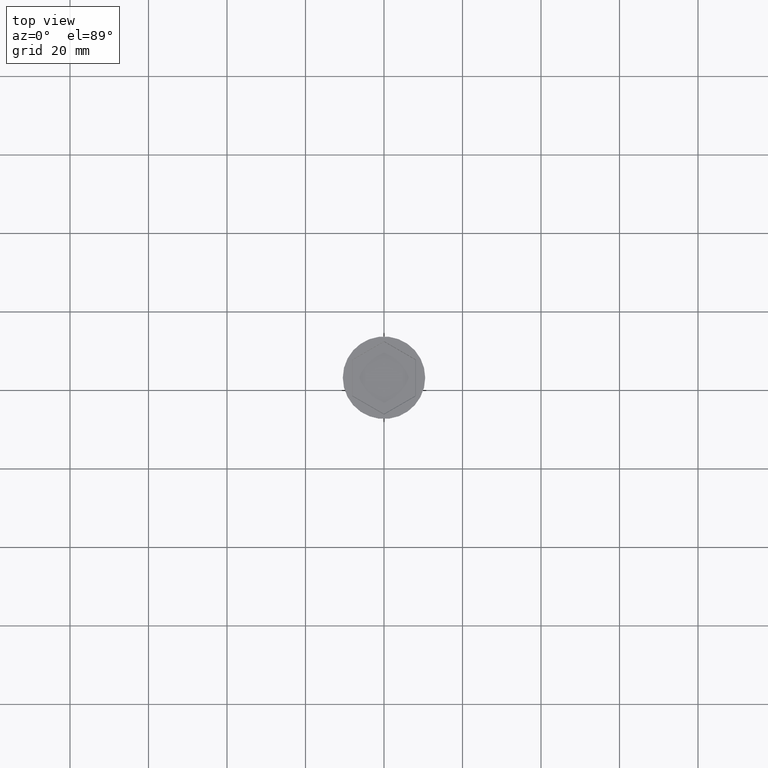
[diagram: clean part render]
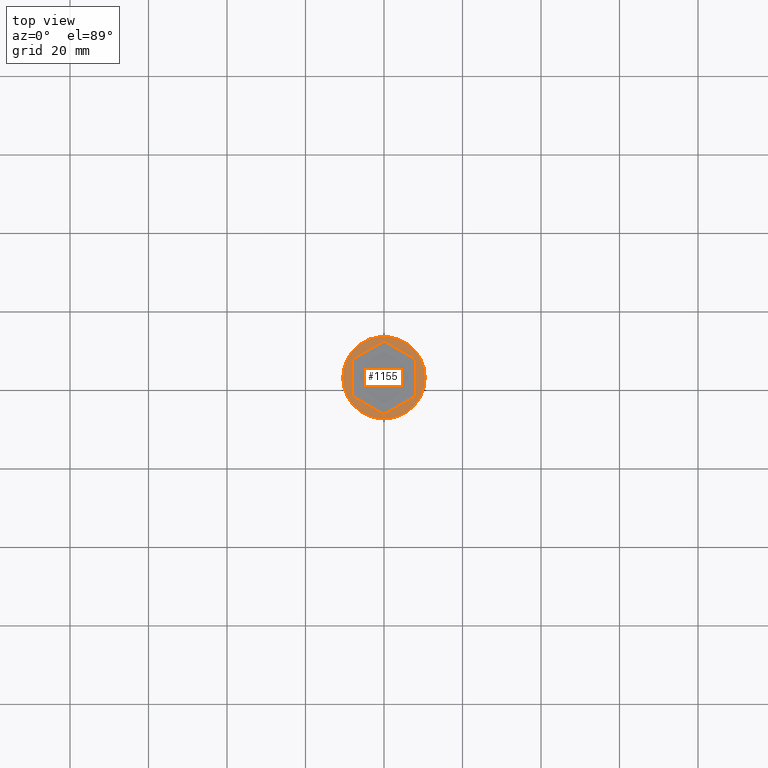
[diagram: same view with one face highlighted and labeled with its STEP entity id]
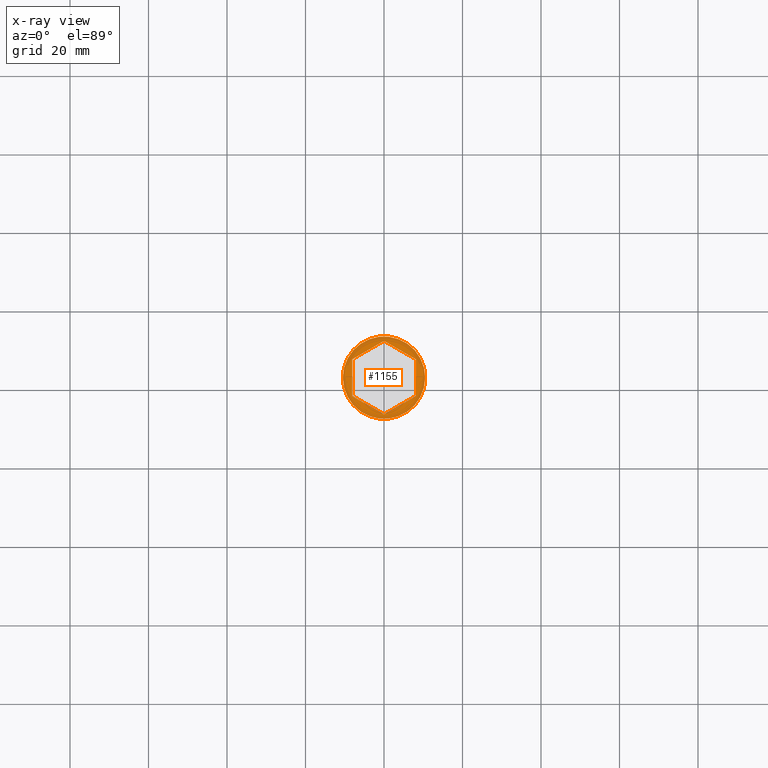
[diagram: x-ray of the same camera — body ghosted, the highlighted face saturated]
A machine part, top view. The second image highlights one B-rep face of the part: STEP entity #1155.
The next image is the same camera in x-ray: the body ghosted, the highlighted face saturated — about 0% of this face is hidden behind the body in this view.
In plain terms, the highlighted planar face has unit normal (0, -0, 1).
Its self-contained STEP definition (entity closure, byte-faithful):
#29 = LINE ( 'NONE', #188, #1209 ) ;
#36 = VECTOR ( 'NONE', #912, 1000.000000000000114 ) ;
#88 = LINE ( 'NONE', #215, #981 ) ;
#119 = VECTOR ( 'NONE', #121, 1000.000000000000000 ) ;
#121 = DIRECTION ( 'NONE',  ( 0.000000000000000000, 1.000000000000000000, 0.000000000000000000 ) ) ;
#143 = AXIS2_PLACEMENT_3D ( 'NONE', #943, #1558, #1197 ) ;
#144 = ORIENTED_EDGE ( 'NONE', *, *, #1101, .T. ) ;
#156 = CARTESIAN_POINT ( 'NONE',  ( -8.099999999999983658, 4.676537180435953012, 0.000000000000000000 ) ) ;
#188 = CARTESIAN_POINT ( 'NONE',  ( 0.04999999999999227979, -9.324206847412442656, 0.000000000000000000 ) ) ;
#208 = FACE_OUTER_BOUND ( 'NONE', #1172, .T. ) ;
#215 = CARTESIAN_POINT ( 'NONE',  ( 8.049999999999991829, 4.705404693895430590, 0.000000000000000000 ) ) ;
#232 = CARTESIAN_POINT ( 'NONE',  ( -8.099999999999983658, -4.676537180435961005, 0.000000000000000000 ) ) ;
#244 = DIRECTION ( 'NONE',  ( 0.8660254037844385966, -0.5000000000000001110, 0.000000000000000000 ) ) ;
#264 = EDGE_CURVE ( 'NONE', #401, #714, #985, .T. ) ;
#281 = LINE ( 'NONE', #993, #1187 ) ;
#285 = ORIENTED_EDGE ( 'NONE', *, *, #1294, .T. ) ;
#365 = LINE ( 'NONE', #1201, #1060 ) ;
#378 = CARTESIAN_POINT ( 'NONE',  ( 0.000000000000000000, 0.000000000000000000, 0.000000000000000000 ) ) ;
#401 = VERTEX_POINT ( 'NONE', #232 ) ;
#408 = AXIS2_PLACEMENT_3D ( 'NONE', #964, #1561, #1222 ) ;
#414 = CARTESIAN_POINT ( 'NONE',  ( 1.575481281892998384E-16, -9.353074360871918458, 0.000000000000000000 ) ) ;
#469 = ORIENTED_EDGE ( 'NONE', *, *, #1103, .T. ) ;
#477 = FACE_BOUND ( 'NONE', #950, .T. ) ;
#503 = VERTEX_POINT ( 'NONE', #1158 ) ;
#531 = DIRECTION ( 'NONE',  ( -0.8660254037844387076, -0.4999999999999998890, 0.000000000000000000 ) ) ;
#599 = CARTESIAN_POINT ( 'NONE',  ( 8.099999999999983658, 4.676537180435953012, 0.000000000000000000 ) ) ;
#621 = ORIENTED_EDGE ( 'NONE', *, *, #264, .T. ) ;
#657 = DIRECTION ( 'NONE',  ( -0.8660254037844387076, 0.4999999999999998890, 0.000000000000000000 ) ) ;
#665 = VERTEX_POINT ( 'NONE', #814 ) ;
#678 = EDGE_CURVE ( 'NONE', #1384, #1463, #29, .T. ) ;
#714 = VERTEX_POINT ( 'NONE', #156 ) ;
#719 = PLANE ( 'NONE',  #408 ) ;
#728 = CIRCLE ( 'NONE', #143, 10.50000000000000000 ) ;
#732 = CARTESIAN_POINT ( 'NONE',  ( -8.099999999999983658, 4.618802153517002296, 0.000000000000000000 ) ) ;
#749 = EDGE_CURVE ( 'NONE', #665, #503, #728, .T. ) ;
#806 = CARTESIAN_POINT ( 'NONE',  ( -0.04999999999999182182, 9.324206847412437327, 0.000000000000000000 ) ) ;
#814 = CARTESIAN_POINT ( 'NONE',  ( -10.50000000000000000, 1.285879139104720831E-15, 0.000000000000000000 ) ) ;
#912 = DIRECTION ( 'NONE',  ( 0.8660254037844385966, 0.5000000000000001110, 0.000000000000000000 ) ) ;
#943 = CARTESIAN_POINT ( 'NONE',  ( 0.000000000000000000, 0.000000000000000000, 0.000000000000000000 ) ) ;
#950 = EDGE_LOOP ( 'NONE', ( #621, #984, #469, #144, #1335, #1410 ) ) ;
#964 = CARTESIAN_POINT ( 'NONE',  ( 0.000000000000000000, 0.000000000000000000, 0.000000000000000000 ) ) ;
#981 = VECTOR ( 'NONE', #244, 1000.000000000000114 ) ;
#984 = ORIENTED_EDGE ( 'NONE', *, *, #1037, .T. ) ;
#985 = LINE ( 'NONE', #732, #119 ) ;
#993 = CARTESIAN_POINT ( 'NONE',  ( -8.049999999999991829, -4.705404693895438584, 0.000000000000000000 ) ) ;
#1005 = CIRCLE ( 'NONE', #1116, 10.50000000000000000 ) ;
#1037 = EDGE_CURVE ( 'NONE', #714, #1516, #1423, .T. ) ;
#1060 = VECTOR ( 'NONE', #1085, 1000.000000000000000 ) ;
#1085 = DIRECTION ( 'NONE',  ( 0.000000000000000000, -1.000000000000000000, -0.000000000000000000 ) ) ;
#1101 = EDGE_CURVE ( 'NONE', #1181, #1384, #365, .T. ) ;
#1103 = EDGE_CURVE ( 'NONE', #1516, #1181, #88, .T. ) ;
#1116 = AXIS2_PLACEMENT_3D ( 'NONE', #378, #1126, #1119 ) ;
#1119 = DIRECTION ( 'NONE',  ( 1.000000000000000000, 0.000000000000000000, 0.000000000000000000 ) ) ;
#1126 = DIRECTION ( 'NONE',  ( -0.000000000000000000, -0.000000000000000000, 1.000000000000000000 ) ) ;
#1155 = ADVANCED_FACE ( 'NONE', ( #477, #208 ), #719, .T. ) ;
#1158 = CARTESIAN_POINT ( 'NONE',  ( 10.50000000000000000, 0.000000000000000000, 0.000000000000000000 ) ) ;
#1163 = CARTESIAN_POINT ( 'NONE',  ( 8.099999999999983658, -4.676537180435961005, 0.000000000000000000 ) ) ;
#1172 = EDGE_LOOP ( 'NONE', ( #285, #1506 ) ) ;
#1181 = VERTEX_POINT ( 'NONE', #599 ) ;
#1187 = VECTOR ( 'NONE', #657, 1000.000000000000000 ) ;
#1197 = DIRECTION ( 'NONE',  ( 1.000000000000000000, 0.000000000000000000, 0.000000000000000000 ) ) ;
#1199 = CARTESIAN_POINT ( 'NONE',  ( -1.270549420881450509E-16, 9.353074360871913129, 0.000000000000000000 ) ) ;
#1201 = CARTESIAN_POINT ( 'NONE',  ( 8.099999999999983658, -4.618802153517008513, 0.000000000000000000 ) ) ;
#1209 = VECTOR ( 'NONE', #531, 1000.000000000000000 ) ;
#1222 = DIRECTION ( 'NONE',  ( 1.000000000000000000, 0.000000000000000000, 0.000000000000000000 ) ) ;
#1275 = EDGE_CURVE ( 'NONE', #1463, #401, #281, .T. ) ;
#1294 = EDGE_CURVE ( 'NONE', #503, #665, #1005, .T. ) ;
#1335 = ORIENTED_EDGE ( 'NONE', *, *, #678, .T. ) ;
#1384 = VERTEX_POINT ( 'NONE', #1163 ) ;
#1410 = ORIENTED_EDGE ( 'NONE', *, *, #1275, .T. ) ;
#1423 = LINE ( 'NONE', #806, #36 ) ;
#1463 = VERTEX_POINT ( 'NONE', #414 ) ;
#1506 = ORIENTED_EDGE ( 'NONE', *, *, #749, .T. ) ;
#1516 = VERTEX_POINT ( 'NONE', #1199 ) ;
#1558 = DIRECTION ( 'NONE',  ( -0.000000000000000000, -0.000000000000000000, 1.000000000000000000 ) ) ;
#1561 = DIRECTION ( 'NONE',  ( 0.000000000000000000, -0.000000000000000000, 1.000000000000000000 ) ) ;